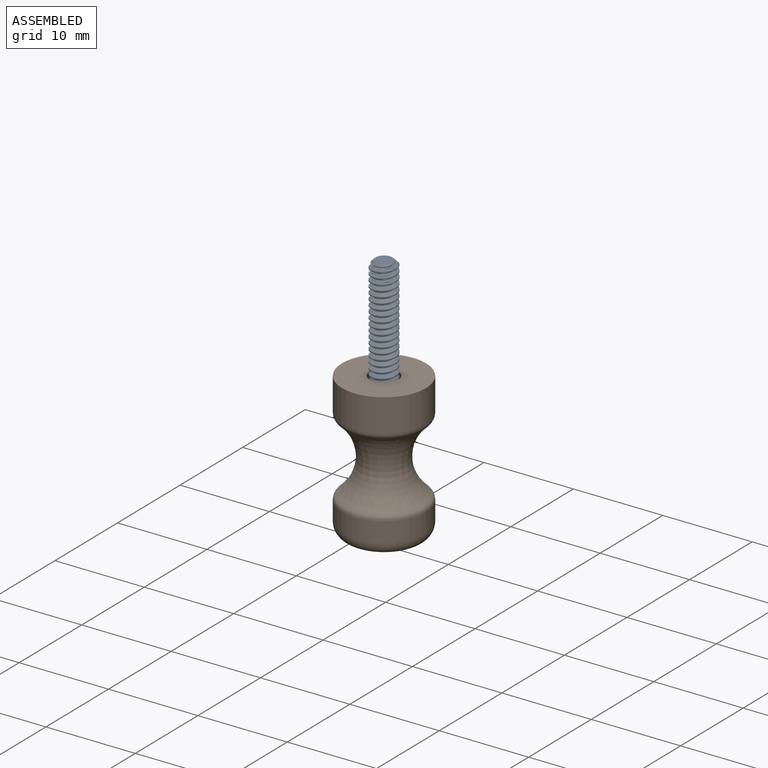
[diagram: assembled view]
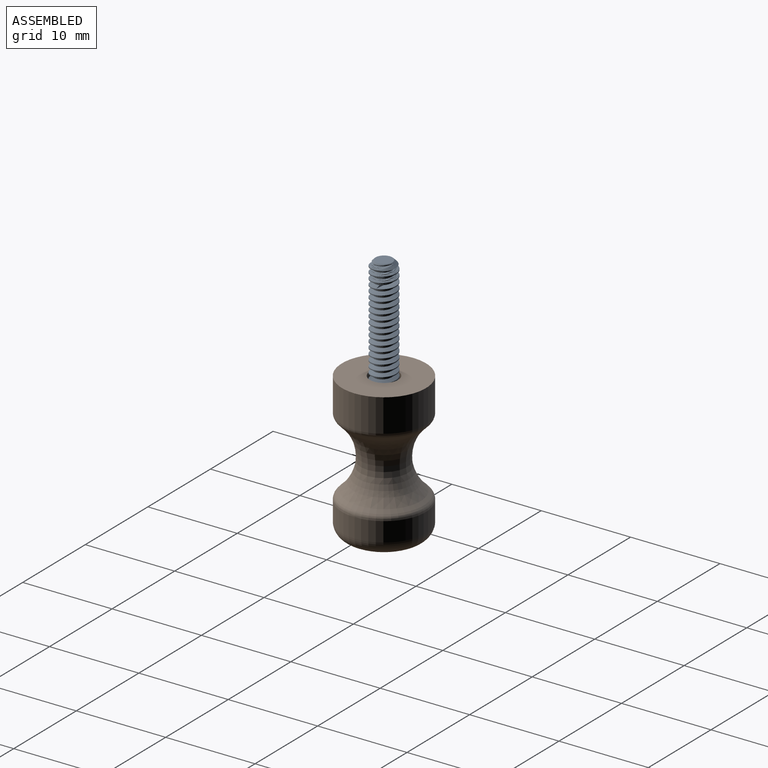
[diagram: assembled view, second angle]
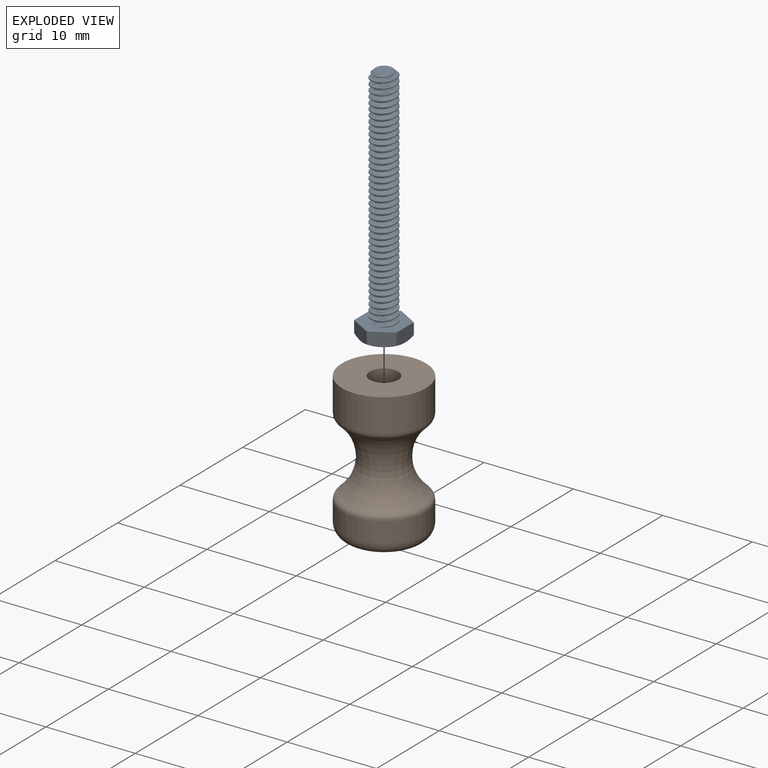
[diagram: exploded view]
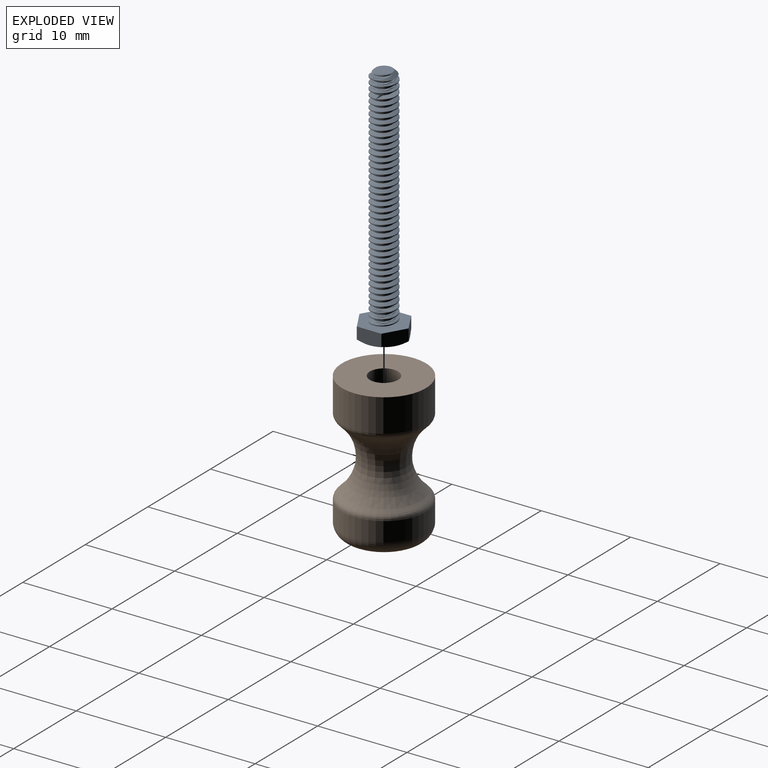
[diagram: exploded view, second angle]
ASSEMBLY  parts=2 mates=2
PART A: 21 faces, bbox 5.7x27.3x5.7 mm
  f0: plane 2.98x1.75mm, normal (-1,0,0), area 4mm2, adj f1,f5,f6,f16,f17
  f1: plane 2.61x1.75mm, normal (-0.5,0,-0.87), area 4mm2, adj f0,f2,f6,f15,f16
  f2: plane 2.61x1.75mm, normal (0.5,0,-0.87), area 4mm2, adj f1,f3,f6,f14,f15
  f3: plane 2.98x1.75mm, normal (1,0,0), area 4mm2, adj f2,f4,f6,f14,f19
  f4: plane 2.61x1.75mm, normal (0.5,0,0.87), area 4mm2, adj f3,f5,f6,f18,f19
  f5: plane 2.61x1.75mm, normal (-0.5,0,0.87), area 4mm2, adj f0,f4,f6,f17,f18
  f6: plane 5.73x5mm, normal (0,1,0), area 14.9mm2, adj f0,f1,f2,f3,f4,f5,f7,f11
  f7: cylinder r=1.42mm len=24.92mm, axis (0,-1,0), area 47.3mm2, adj f6,f8,f9,f11,f13
  f8: cone r=1.42mm half-angle=45deg, axis (0,-1,0), area 2.8mm2, adj f7,f9,f10,f11,f12,f13
  f9: cone r=1.42mm half-angle=45deg, axis (0,-1,0), area 0mm2, adj f7,f8,f13
  f10: plane 1.89x1.89mm, normal (0,1,0), area 2.8mm2, adj f8
  f11: bspline ~25.85x3.33mm, area 142mm2, adj f6,f7,f8,f12
  f12: cylinder r=1.01mm len=25.33mm, axis (0,-1,0), area 15.1mm2, adj f6,f8,f11,f13
  f13: bspline ~25.56x2.84mm, area 141.8mm2, adj f6,f7,f8,f9,f12
  f14: cone r=2.38mm half-angle=60deg, axis (0,1,0), area 0.6mm2, adj f2,f3,f20
  f15: cone r=2.38mm half-angle=60deg, axis (0,1,0), area 0.6mm2, adj f1,f2,f20
  f16: cone r=2.38mm half-angle=60deg, axis (0,1,0), area 0.6mm2, adj f0,f1,f20
  f17: cone r=2.38mm half-angle=60deg, axis (0,1,0), area 0.6mm2, adj f0,f5,f20
  f18: cone r=2.38mm half-angle=60deg, axis (0,1,0), area 0.6mm2, adj f4,f5,f20
  f19: cone r=2.38mm half-angle=60deg, axis (0,1,0), area 0.6mm2, adj f3,f4,f20
  f20: plane 4.76x4.76mm, normal (0,-1,0), area 17.8mm2, adj f14,f15,f16,f17,f18,f19
PART B: 12 faces, bbox 10.2x10.2x16.2 mm
  f0: plane 6.35x6.35mm, normal (0,0,1), area 31.7mm2, adj f11
  f1: plane 6.35x6.35mm, normal (0,0,-1), area 31.7mm2, adj f2
  f2: torus R=3.17mm, axis (0,0,1), area 62.3mm2, adj f1,f3
  f3: cylinder r=4.7mm len=9.4mm, axis (0,0,1), area 63.9mm2, adj f2,f4
  f4: torus R=3.94mm, axis (0,0,1), area 18.9mm2, adj f3,f5
  f5: revolved ~8.87x8.87mm, area 178.6mm2, adj f4,f6
  f6: torus R=3.94mm, axis (0,0,1), area 18.9mm2, adj f5,f7
  f7: cylinder r=4.7mm len=9.4mm, axis (0,0,1), area 108.9mm2, adj f6,f8
  f8: plane 9.4x9.4mm, normal (0,0,1), area 61.5mm2, adj f7,f9
  f9: cylinder r=1.59mm len=13.69mm, axis (0,0,1), area 136.5mm2, adj f8,f10
  f10: plane 6.35x6.35mm, normal (0,0,-1), area 23.8mm2, adj f9,f11
  f11: cylinder r=3.17mm len=6.35mm, axis (0,0,1), area 30.4mm2, adj f0,f10
PLACE A rot(axis=(1,0,0),90deg) t=(12.36,2.08,45.79)mm
PLACE B t=(12.36,-0.46,22.76)mm
MATE slider A.f7 <-> B.f2  axis (0,0,1) through (12.36,2.08,71.19)mm
MATE fastened B.f2 <-> A.f7  axis (0,0,1) through (12.36,2.08,44.27)mm
